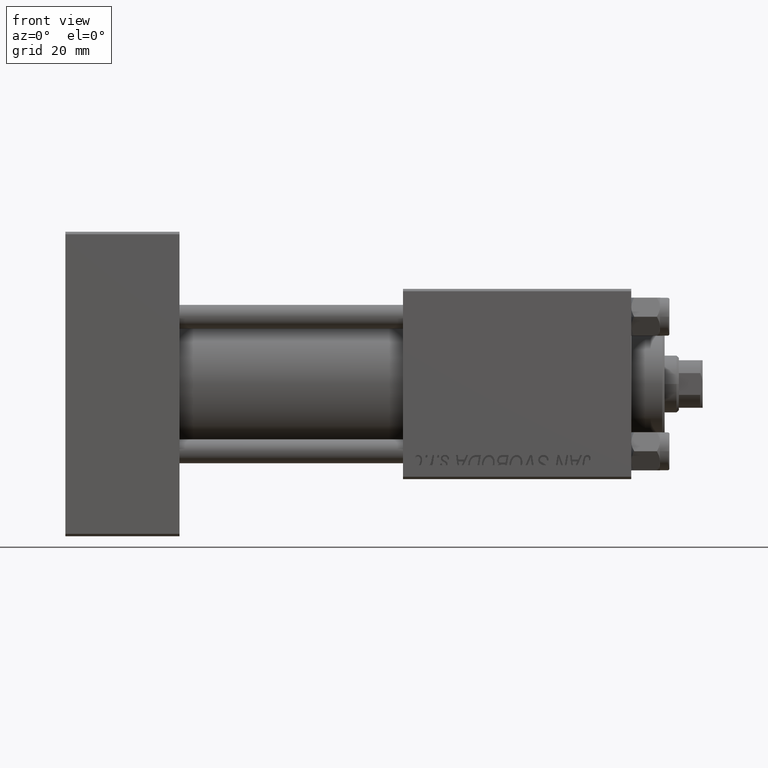
[diagram: clean part render]
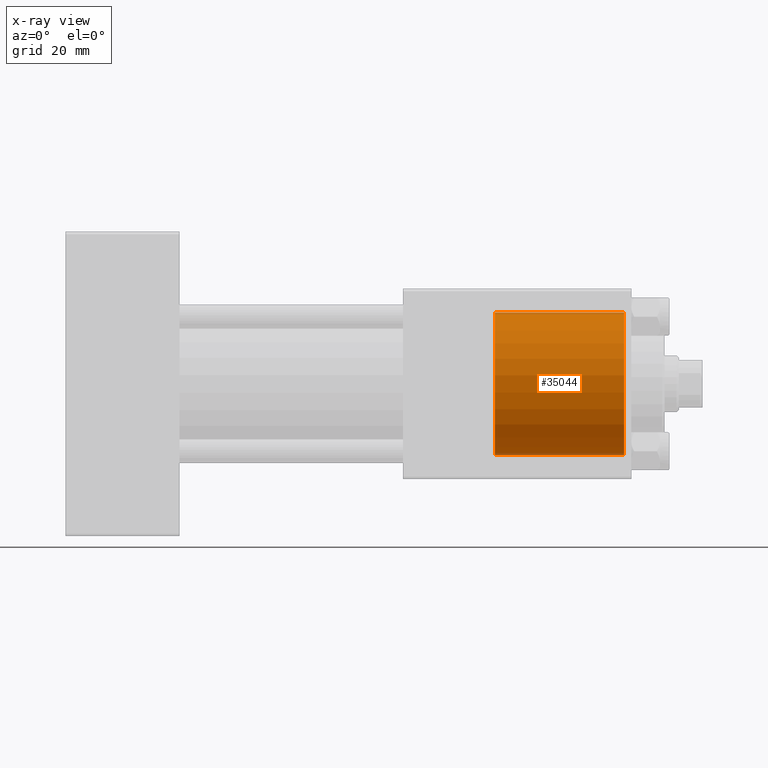
[diagram: x-ray — body ghosted, one internal face saturated and labeled with its STEP entity id]
A machine part, front view, then the same camera in x-ray: the body is ghosted and one INTERNAL B-rep face — a face not visible from any outside direction — is saturated and labeled: STEP entity #35044.
In plain terms, the highlighted cylindrical surface (partial cylindrical patch) has radius 15 mm, axis along (1, 0, 0).
Its self-contained STEP definition (entity closure, byte-faithful):
#1663 = DIRECTION ( 'NONE',  ( 1.000000000000000000, -0.000000000000000000, -0.000000000000000000 ) ) ;
#1816 = CARTESIAN_POINT ( 'NONE',  ( 90.30000000000001137, 1.836970198721029589E-15, 15.00000000000000000 ) ) ;
#3091 = VECTOR ( 'NONE', #1663, 1000.000000000000000 ) ;
#5691 = EDGE_CURVE ( 'NONE', #49394, #6199, #24378, .T. ) ;
#6199 = VERTEX_POINT ( 'NONE', #28982 ) ;
#10207 = CIRCLE ( 'NONE', #20695, 15.00000000000000000 ) ;
#12687 = DIRECTION ( 'NONE',  ( 1.000000000000000000, -0.000000000000000000, -0.000000000000000000 ) ) ;
#14090 = DIRECTION ( 'NONE',  ( 0.000000000000000000, 0.000000000000000000, -1.000000000000000000 ) ) ;
#15066 = ORIENTED_EDGE ( 'NONE', *, *, #46681, .T. ) ;
#16559 = CARTESIAN_POINT ( 'NONE',  ( 90.30000000000001137, 0.000000000000000000, -15.00000000000000000 ) ) ;
#16638 = CARTESIAN_POINT ( 'NONE',  ( 90.30000000000001137, 0.000000000000000000, 0.000000000000000000 ) ) ;
#16901 = DIRECTION ( 'NONE',  ( 0.000000000000000000, 0.000000000000000000, 1.000000000000000000 ) ) ;
#17637 = CYLINDRICAL_SURFACE ( 'NONE', #21475, 15.00000000000000000 ) ;
#18830 = CARTESIAN_POINT ( 'NONE',  ( 117.5000000000000142, 1.836970198721029589E-15, 15.00000000000000000 ) ) ;
#20423 = ORIENTED_EDGE ( 'NONE', *, *, #22191, .F. ) ;
#20695 = AXIS2_PLACEMENT_3D ( 'NONE', #43177, #23715, #16901 ) ;
#21475 = AXIS2_PLACEMENT_3D ( 'NONE', #33039, #48434, #14090 ) ;
#22191 = EDGE_CURVE ( 'NONE', #24712, #49394, #33313, .T. ) ;
#23715 = DIRECTION ( 'NONE',  ( 1.000000000000000000, 0.000000000000000000, 0.000000000000000000 ) ) ;
#24378 = LINE ( 'NONE', #16559, #3091 ) ;
#24712 = VERTEX_POINT ( 'NONE', #48776 ) ;
#25598 = VECTOR ( 'NONE', #12687, 1000.000000000000000 ) ;
#27563 = ORIENTED_EDGE ( 'NONE', *, *, #5691, .F. ) ;
#28490 = AXIS2_PLACEMENT_3D ( 'NONE', #16638, #47430, #35831 ) ;
#28982 = CARTESIAN_POINT ( 'NONE',  ( 117.5000000000000142, 0.000000000000000000, -15.00000000000000000 ) ) ;
#32611 = LINE ( 'NONE', #1816, #25598 ) ;
#33039 = CARTESIAN_POINT ( 'NONE',  ( 90.30000000000001137, 0.000000000000000000, 0.000000000000000000 ) ) ;
#33313 = CIRCLE ( 'NONE', #28490, 15.00000000000000000 ) ;
#34894 = EDGE_CURVE ( 'NONE', #41059, #6199, #10207, .T. ) ;
#35044 = ADVANCED_FACE ( 'NONE', ( #36832 ), #17637, .F. ) ;
#35831 = DIRECTION ( 'NONE',  ( 0.000000000000000000, 0.000000000000000000, -1.000000000000000000 ) ) ;
#36504 = ORIENTED_EDGE ( 'NONE', *, *, #34894, .T. ) ;
#36832 = FACE_OUTER_BOUND ( 'NONE', #39239, .T. ) ;
#39239 = EDGE_LOOP ( 'NONE', ( #20423, #15066, #36504, #27563 ) ) ;
#41059 = VERTEX_POINT ( 'NONE', #18830 ) ;
#42079 = CARTESIAN_POINT ( 'NONE',  ( 90.30000000000001137, 0.000000000000000000, -15.00000000000000000 ) ) ;
#43177 = CARTESIAN_POINT ( 'NONE',  ( 117.5000000000000142, 0.000000000000000000, 0.000000000000000000 ) ) ;
#46681 = EDGE_CURVE ( 'NONE', #24712, #41059, #32611, .T. ) ;
#47430 = DIRECTION ( 'NONE',  ( 1.000000000000000000, 0.000000000000000000, 0.000000000000000000 ) ) ;
#48434 = DIRECTION ( 'NONE',  ( 1.000000000000000000, -0.000000000000000000, -0.000000000000000000 ) ) ;
#48776 = CARTESIAN_POINT ( 'NONE',  ( 90.30000000000001137, 1.836970198721029589E-15, 15.00000000000000000 ) ) ;
#49394 = VERTEX_POINT ( 'NONE', #42079 ) ;